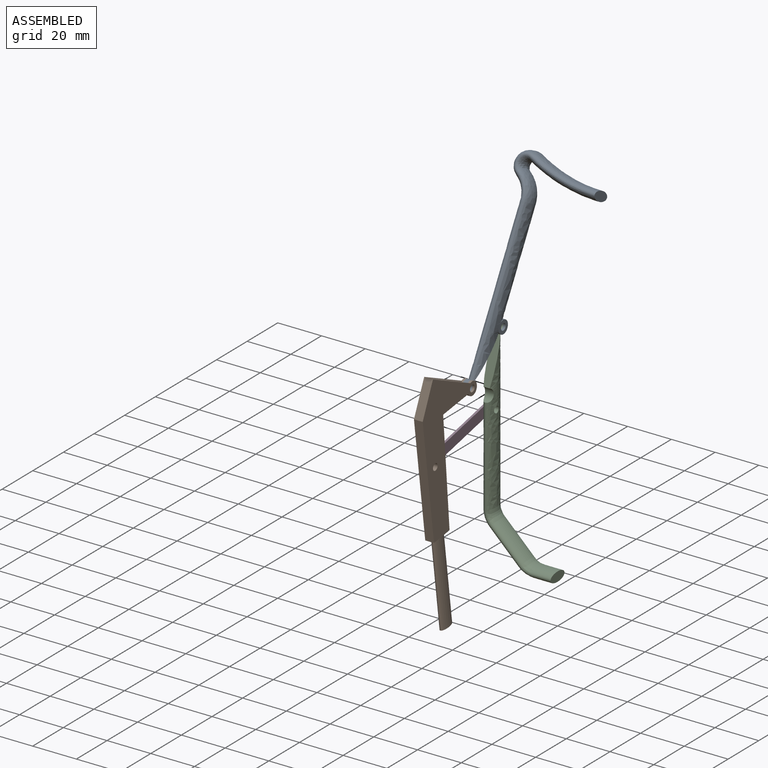
[diagram: assembled view]
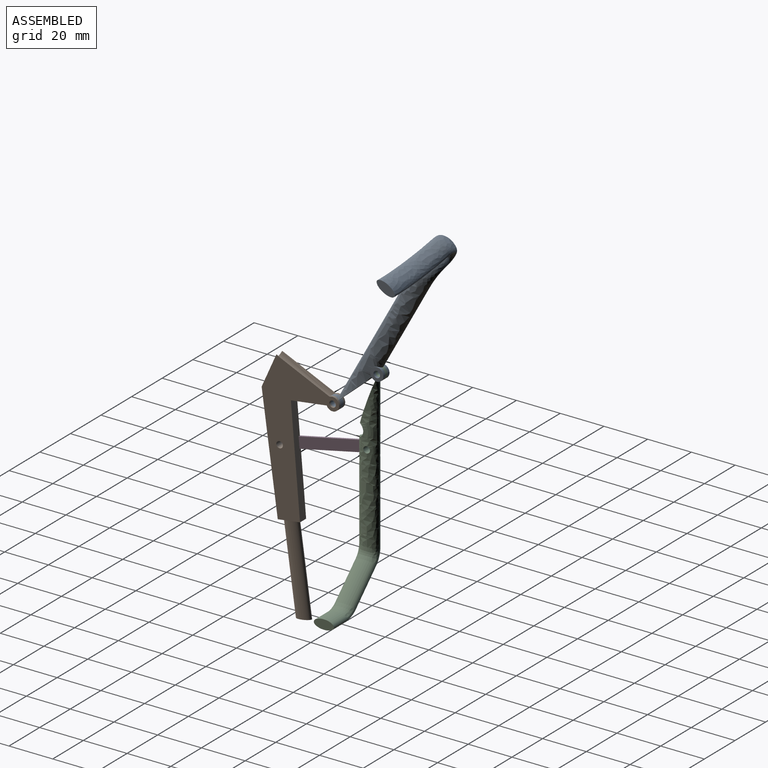
[diagram: assembled view, second angle]
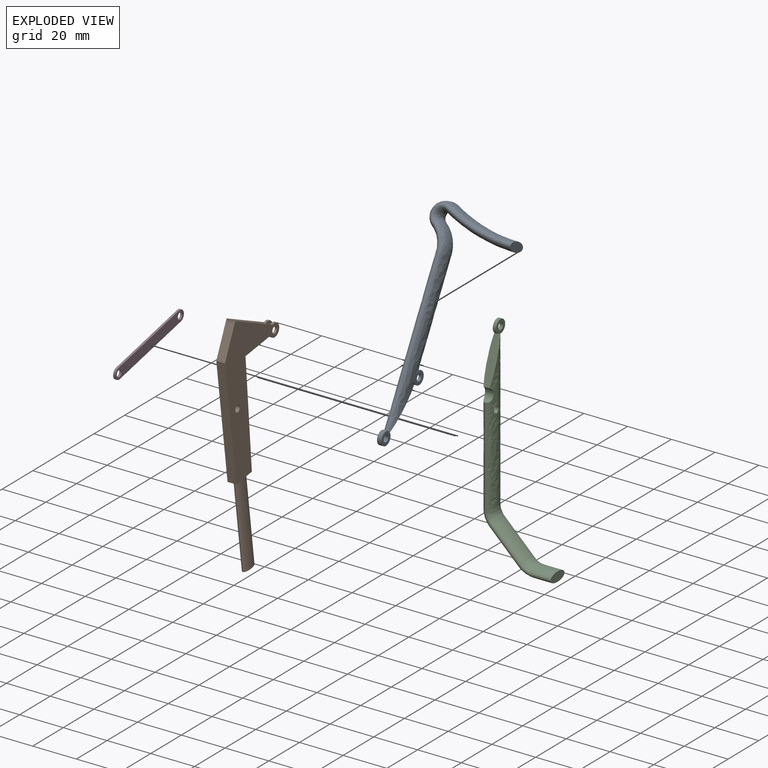
[diagram: exploded view]
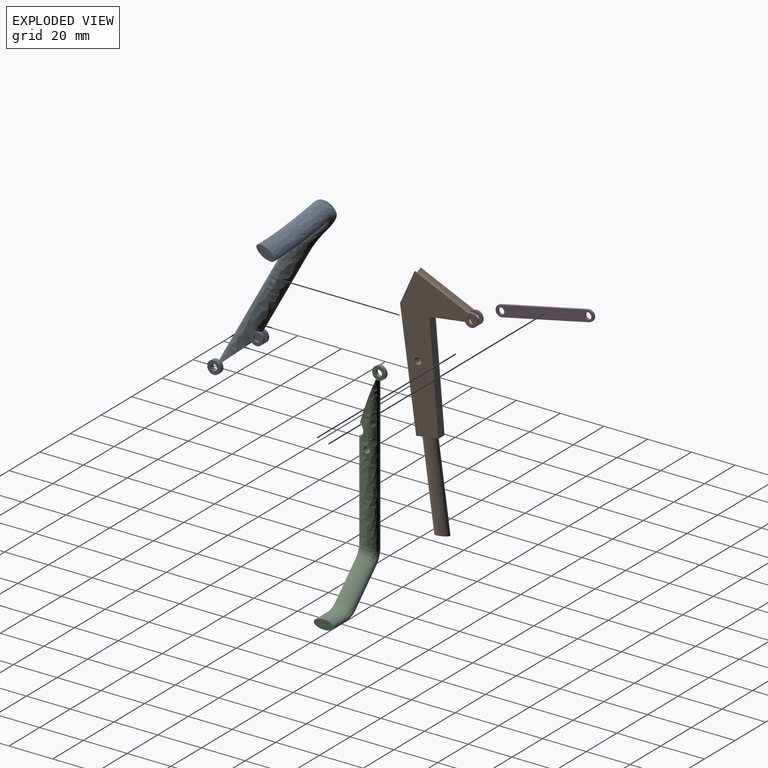
[diagram: exploded view, second angle]
ASSEMBLY  parts=4 mates=4
PART A: 21 faces, bbox 50.4x15.8x147.5 mm
  f0: cylinder r=3mm len=6mm, axis (-1,0,0), area 15.6mm2, adj f2,f3,f10,f16
  f1: cylinder r=3mm len=0.5mm, axis (-1,0,0), area 0.1mm2, adj f2,f3,f14
  f2: bspline ~120x9.19mm, area 1278.4mm2, adj f0,f1,f3,f7,f8,f9,f10,f11
  f3: plane 20.2x7.73mm, normal (0,0.94,-0.34), area 80mm2, adj f0,f1,f2,f8,f11,f12,f15
  f4: plane 9.19x4.32mm, normal (1,0,0), area 31.2mm2, adj f5
  f5: bspline ~33.29x15.19mm, area 712.6mm2, adj f4,f6
  f6: bspline ~20.55x20.12mm, area 262.5mm2, adj f5,f7
  f7: bspline ~13.6x12.07mm, area 259.3mm2, adj f2,f6
  f8: cylinder r=3mm len=6mm, axis (-1,0,0), area 15.6mm2, adj f2,f3,f9,f17
  f9: plane 6x5.87mm, normal (1,0,0), area 21mm2, adj f2,f8,f18
  f10: plane 6x5.87mm, normal (-1,0,0), area 21mm2, adj f0,f2,f19
  f11: cylinder r=3mm len=0.5mm, axis (-1,0,0), area 0.1mm2, adj f2,f3,f13
  f12: cylinder r=3mm len=6mm, axis (-1,0,0), area 36.1mm2, adj f2,f3,f13,f14
  f13: plane 6x6mm, normal (1,0,0), area 21.2mm2, adj f11,f12,f20
  f14: plane 6x6mm, normal (-1,0,0), area 21.2mm2, adj f1,f12,f20
  f15: cylinder r=3mm len=5.82mm, axis (1,0,0), area 12.4mm2, adj f2,f3,f16,f17
  f16: plane 6x6mm, normal (1,0,0), area 21.2mm2, adj f0,f15,f19
  f17: plane 6x6mm, normal (-1,0,0), area 21.2mm2, adj f8,f15,f18
  f18: cylinder r=1.5mm len=3mm, axis (1,0,0), area 11.8mm2, adj f9,f17
  f19: cylinder r=1.5mm len=3mm, axis (1,0,0), area 11.8mm2, adj f10,f16
  f20: cylinder r=1.5mm len=3mm, axis (1,0,0), area 18.8mm2, adj f13,f14
PART B: 20 faces, bbox 4x95.9x56.9 mm
  f0: cylinder r=3mm len=6mm, axis (-1,0,0), area 14.8mm2, adj f2,f4,f10,f12,f14
  f1: plane 26.72x0.25mm, normal (0,1,0), area 6.6mm2, adj f3,f5,f9,f12
  f2: plane 14.02x8.71mm, normal (0,-0.85,-0.53), area 66mm2, adj f0,f3,f8,f9,f10,f11
  f3: cylinder r=3mm len=6mm, axis (-1,0,0), area 14.8mm2, adj f1,f2,f9,f12,f13
  f4: plane 26.72x0.25mm, normal (0,1,0), area 6.6mm2, adj f0,f5,f10,f12
  f5: plane 16.43x4mm, normal (0,0,1), area 61mm2, adj f1,f4,f6,f9,f10,f12
  f6: plane 45.27x28.26mm, normal (0,-0.53,0.85), area 213.5mm2, adj f5,f7,f9,f10
  f7: plane 8.71x5.44mm, normal (0,-0.85,-0.53), area 24.9mm2, adj f6,f8,f9,f10,f18
  f8: plane 43.34x23.9mm, normal (0,0.48,-0.88), area 198mm2, adj f2,f7,f9,f10
  f9: plane 62.79x36.97mm, normal (1,0,0), area 921.9mm2, adj f1,f2,f3,f5,f6,f7,f8,f16
  f10: plane 62.79x36.97mm, normal (-1,0,0), area 921.9mm2, adj f0,f2,f4,f5,f6,f7,f8,f15
  f11: cylinder r=3mm len=2.81mm, axis (-1,0,0), area 5.6mm2, adj f2,f12,f13,f14
  f12: bspline ~26.72x3.51mm, area 144.8mm2, adj f0,f1,f3,f4,f5,f11
  f13: plane 6x6mm, normal (-1,0,0), area 21.2mm2, adj f3,f11,f16
  f14: plane 6x6mm, normal (1,0,0), area 21.2mm2, adj f0,f11,f15
  f15: cylinder r=1.5mm len=3mm, axis (1,0,0), area 9.4mm2, adj f10,f14
  f16: cylinder r=1.5mm len=3mm, axis (1,0,0), area 9.4mm2, adj f9,f13
  f17: cylinder r=1.5mm len=4mm, axis (1,0,0), area 37.7mm2, adj f9,f10
  f18: extruded ~37.75x27.3mm, area 662.5mm2, adj f7,f19
  f19: plane 6.12x3.82mm, normal (0,-0.85,-0.53), area 16.2mm2, adj f18
PART C: 15 faces, bbox 34.3x12.2x145.6 mm
  f0: bspline ~120x9.19mm, area 1263.4mm2, adj f1,f6,f7,f9,f10,f12,f14
  f1: plane 19.62x7.14mm, normal (0,-0.94,0.34), area 80mm2, adj f0,f7,f9,f10,f12
  f2: plane 9.19x4.32mm, normal (1,0,0), area 31.2mm2, adj f3
  f3: bspline ~9.19x8.63mm, area 183.7mm2, adj f2,f4
  f4: bspline ~9.76x9.19mm, area 140.3mm2, adj f3,f5
  f5: bspline ~19.38x19.2mm, area 409.1mm2, adj f4,f6
  f6: bspline ~9.83x9.19mm, area 144.8mm2, adj f0,f5
  f7: cylinder r=3mm len=5.82mm, axis (-1,0,0), area 29mm2, adj f0,f1
  f8: plane 6x6mm, normal (1,0,0), area 21.2mm2, adj f9,f12,f13
  f9: cylinder r=3mm len=0.74mm, axis (-1,0,0), area 0.2mm2, adj f0,f1,f8
  f10: cylinder r=3mm len=0.74mm, axis (-1,0,0), area 0.2mm2, adj f0,f1,f11
  f11: plane 6x6mm, normal (-1,0,0), area 21.2mm2, adj f10,f12,f13
  f12: cylinder r=3mm len=6mm, axis (-1,0,0), area 26.8mm2, adj f0,f1,f8,f11
  f13: cylinder r=1.5mm len=3mm, axis (1,0,0), area 14.1mm2, adj f8,f11
  f14: cylinder r=1.5mm len=4.32mm, axis (1,0,0), area 40.7mm2, adj f0
PART D: 8 faces, bbox 1x40.7x24.7 mm
  f0: plane 35.69x19.7mm, normal (0,-0.48,-0.88), area 40.8mm2, adj f1,f4,f6,f7
  f1: cylinder r=2.5mm len=4.69mm, axis (-1,0,0), area 7.9mm2, adj f0,f2,f6,f7
  f2: plane 35.69x19.7mm, normal (0,0.48,0.88), area 40.8mm2, adj f1,f4,f6,f7
  f3: cylinder r=1.5mm len=3mm, axis (-1,0,0), area 9.4mm2, adj f6,f7
  f4: cylinder r=2.5mm len=4.69mm, axis (-1,0,0), area 7.9mm2, adj f0,f2,f6,f7
  f5: cylinder r=1.5mm len=3mm, axis (-1,0,0), area 9.4mm2, adj f6,f7
  f6: plane 40.69x24.7mm, normal (1,0,0), area 209.3mm2, adj f0,f1,f2,f3,f4,f5
  f7: plane 40.69x24.7mm, normal (-1,0,0), area 209.3mm2, adj f0,f1,f2,f3,f4,f5
PLACE A rot(axis=(-1,0,0),28.9deg) t=(0,-5.53,3.79)mm
PLACE B rot(axis=(1,0,0),66deg) t=(0,-25.31,4.29)mm
PLACE C at identity fixed
PLACE D rot(axis=(1,0,0),41.1deg) t=(-1.69,-12.94,-4.85)mm
MATE revolute A.f1 <-> B.f0  axis (-1,0,0) through (-31,-15.65,-5.05)mm
MATE cylindrical B.f17 <-> D.f4  axis (1,0,0) through (-30,-39.84,-28.3)mm
MATE revolute C.f14 <-> D.f1  axis (1,0,0) through (-32.19,0,-19.69)mm
MATE revolute C.f9 <-> A.f0  axis (1,0,0) through (-30.75,4.6,12.63)mm
